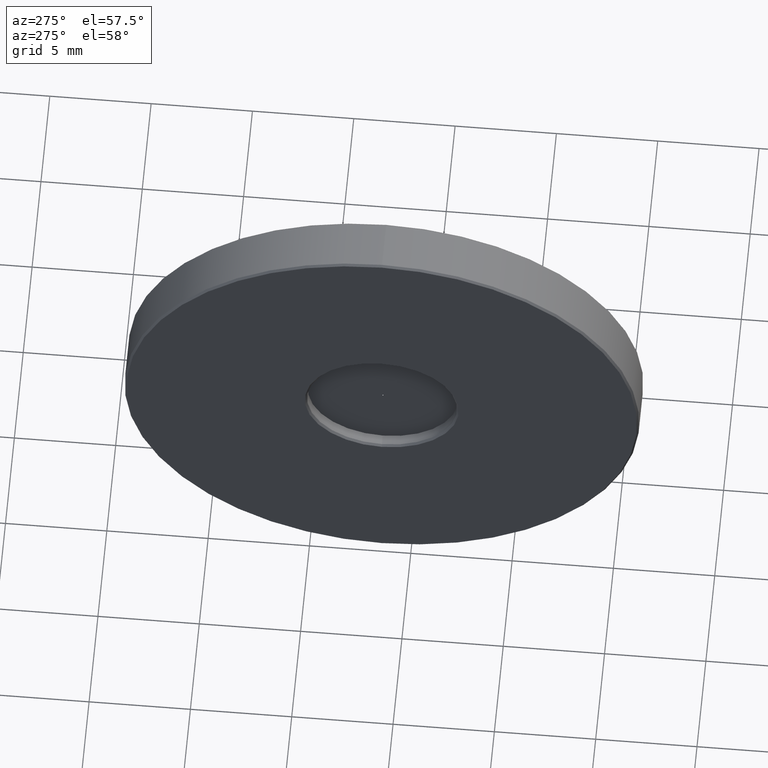
[diagram: clean part render]
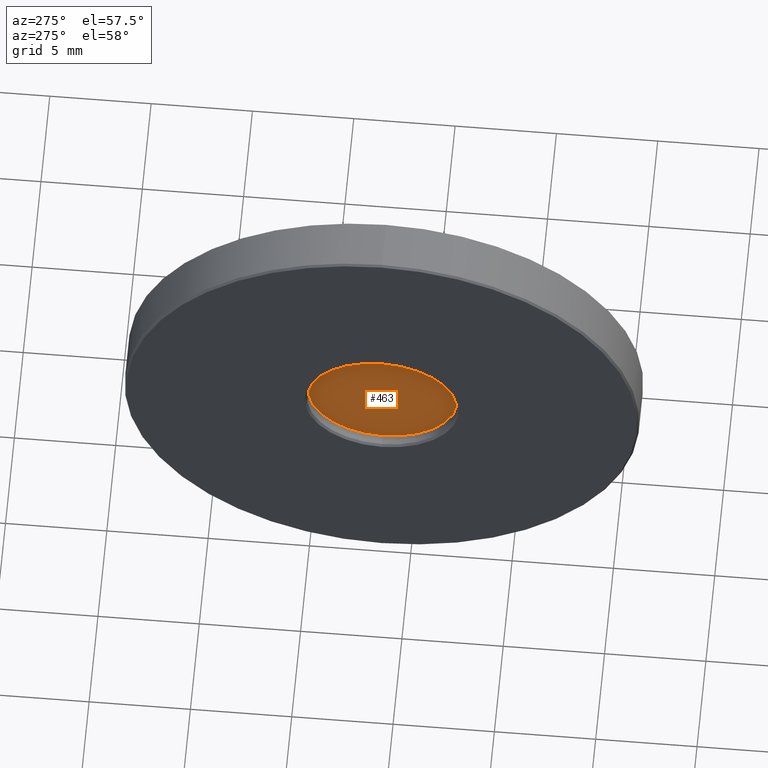
[diagram: same view with one face highlighted and labeled with its STEP entity id]
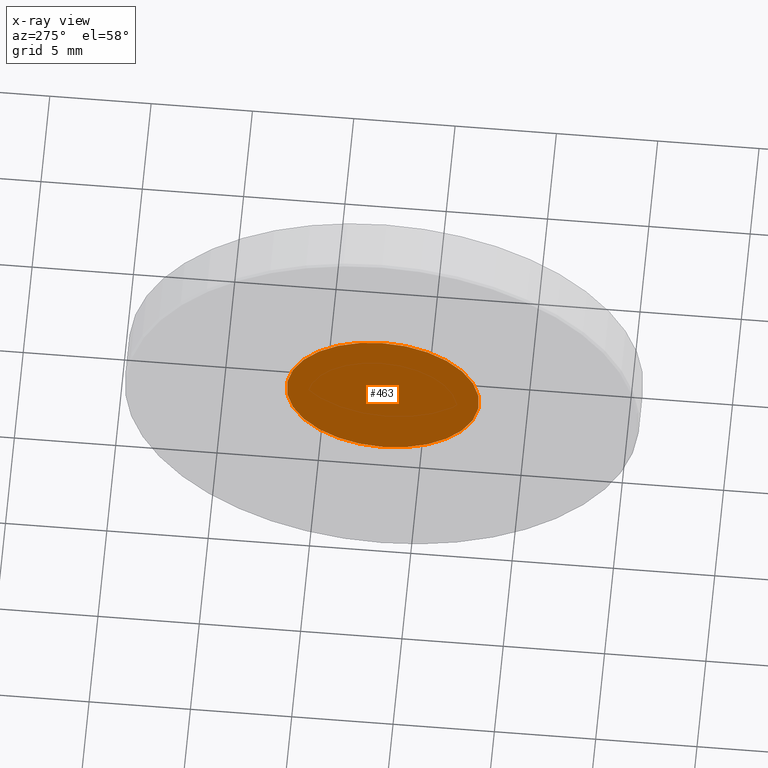
[diagram: x-ray of the same camera — body ghosted, the highlighted face saturated]
A machine part, auxiliary view. The second image highlights one B-rep face of the part: STEP entity #463.
The next image is the same camera in x-ray: the body ghosted, the highlighted face saturated — about 0% of this face is hidden behind the body in this view.
In plain terms, the highlighted planar face has unit normal (1, 0, -0).
Its self-contained STEP definition (entity closure, byte-faithful):
#40 = DIRECTION ( 'NONE',  ( 1.000000000000000000, 0.0000000000000000000, 0.0000000000000000000 ) ) ;
#46 = VERTEX_POINT ( 'NONE', #618 ) ;
#60 = DIRECTION ( 'NONE',  ( 1.000000000000000000, 0.0000000000000000000, 0.0000000000000000000 ) ) ;
#62 = AXIS2_PLACEMENT_3D ( 'NONE', #426, #612, #125 ) ;
#91 = CARTESIAN_POINT ( 'NONE',  ( -4.334863851253204281, 1.436758841085140181, 30.14999999999999858 ) ) ;
#115 = CARTESIAN_POINT ( 'NONE',  ( -4.334863851253204281, 1.436758841085140181, 25.39999999999999858 ) ) ;
#125 = DIRECTION ( 'NONE',  ( 0.0000000000000000000, 0.0000000000000000000, 1.000000000000000000 ) ) ;
#189 = CARTESIAN_POINT ( 'NONE',  ( -4.334863851253204281, 1.436758841085139515, 20.64999999999999858 ) ) ;
#229 = DIRECTION ( 'NONE',  ( 1.000000000000000000, 0.0000000000000000000, 0.0000000000000000000 ) ) ;
#253 = EDGE_CURVE ( 'NONE', #46, #321, #440, .T. ) ;
#271 = AXIS2_PLACEMENT_3D ( 'NONE', #598, #229, #356 ) ;
#321 = VERTEX_POINT ( 'NONE', #347 ) ;
#326 = CIRCLE ( 'NONE', #446, 4.750000000000000888 ) ;
#335 = FACE_BOUND ( 'NONE', #352, .T. ) ;
#347 = CARTESIAN_POINT ( 'NONE',  ( -4.334863851253204281, 1.436758841085140181, 25.42500000000000071 ) ) ;
#352 = EDGE_LOOP ( 'NONE', ( #513, #553 ) ) ;
#356 = DIRECTION ( 'NONE',  ( 0.0000000000000000000, 0.0000000000000000000, 1.000000000000000000 ) ) ;
#377 = EDGE_CURVE ( 'NONE', #760, #655, #734, .T. ) ;
#426 = CARTESIAN_POINT ( 'NONE',  ( -4.334863851253204281, 1.436758841085140181, 25.39999999999999858 ) ) ;
#428 = ORIENTED_EDGE ( 'NONE', *, *, #724, .F. ) ;
#440 = CIRCLE ( 'NONE', #797, 0.02500000000000071609 ) ;
#446 = AXIS2_PLACEMENT_3D ( 'NONE', #767, #40, #473 ) ;
#463 = ADVANCED_FACE ( 'NONE', ( #740, #335 ), #742, .F. ) ;
#473 = DIRECTION ( 'NONE',  ( 0.0000000000000000000, 0.0000000000000000000, 1.000000000000000000 ) ) ;
#478 = EDGE_CURVE ( 'NONE', #321, #46, #579, .T. ) ;
#513 = ORIENTED_EDGE ( 'NONE', *, *, #478, .T. ) ;
#537 = EDGE_LOOP ( 'NONE', ( #680, #428 ) ) ;
#550 = DIRECTION ( 'NONE',  ( 0.0000000000000000000, 0.0000000000000000000, 1.000000000000000000 ) ) ;
#553 = ORIENTED_EDGE ( 'NONE', *, *, #253, .T. ) ;
#579 = CIRCLE ( 'NONE', #741, 0.02500000000000071609 ) ;
#598 = CARTESIAN_POINT ( 'NONE',  ( -4.334863851253204281, 1.436758841085140181, 25.39999999999999858 ) ) ;
#612 = DIRECTION ( 'NONE',  ( 1.000000000000000000, 0.0000000000000000000, -0.0000000000000000000 ) ) ;
#618 = CARTESIAN_POINT ( 'NONE',  ( -4.334863851253204281, 1.436758841085140181, 25.37500000000000000 ) ) ;
#639 = DIRECTION ( 'NONE',  ( 0.0000000000000000000, 0.0000000000000000000, 1.000000000000000000 ) ) ;
#655 = VERTEX_POINT ( 'NONE', #189 ) ;
#680 = ORIENTED_EDGE ( 'NONE', *, *, #377, .F. ) ;
#724 = EDGE_CURVE ( 'NONE', #655, #760, #326, .T. ) ;
#734 = CIRCLE ( 'NONE', #271, 4.750000000000000888 ) ;
#740 = FACE_OUTER_BOUND ( 'NONE', #537, .T. ) ;
#741 = AXIS2_PLACEMENT_3D ( 'NONE', #115, #60, #550 ) ;
#742 = PLANE ( 'NONE',  #62 ) ;
#760 = VERTEX_POINT ( 'NONE', #91 ) ;
#764 = DIRECTION ( 'NONE',  ( 1.000000000000000000, 0.0000000000000000000, 0.0000000000000000000 ) ) ;
#767 = CARTESIAN_POINT ( 'NONE',  ( -4.334863851253204281, 1.436758841085140181, 25.39999999999999858 ) ) ;
#775 = CARTESIAN_POINT ( 'NONE',  ( -4.334863851253204281, 1.436758841085140181, 25.39999999999999858 ) ) ;
#797 = AXIS2_PLACEMENT_3D ( 'NONE', #775, #764, #639 ) ;